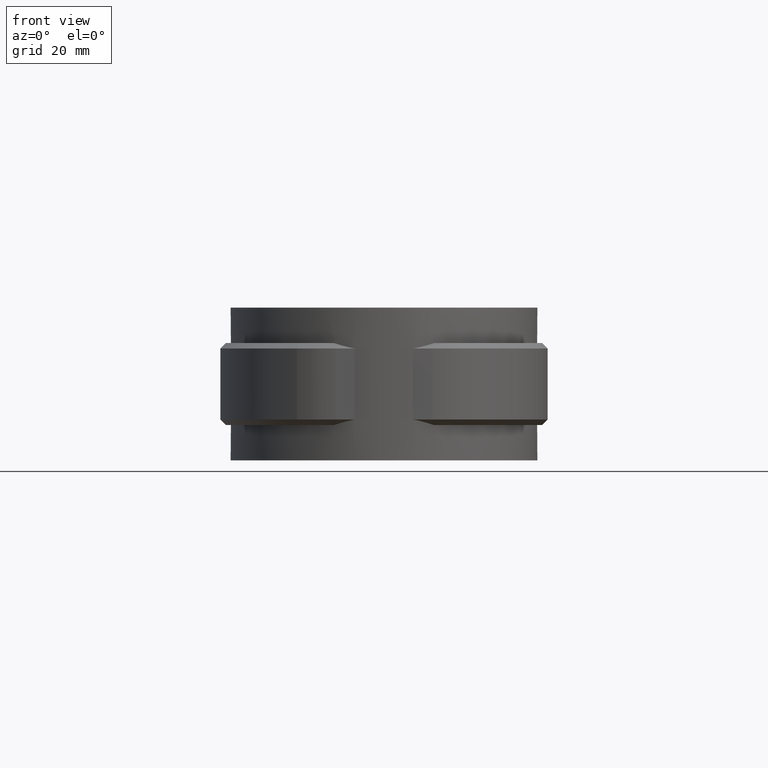
[diagram: clean part render]
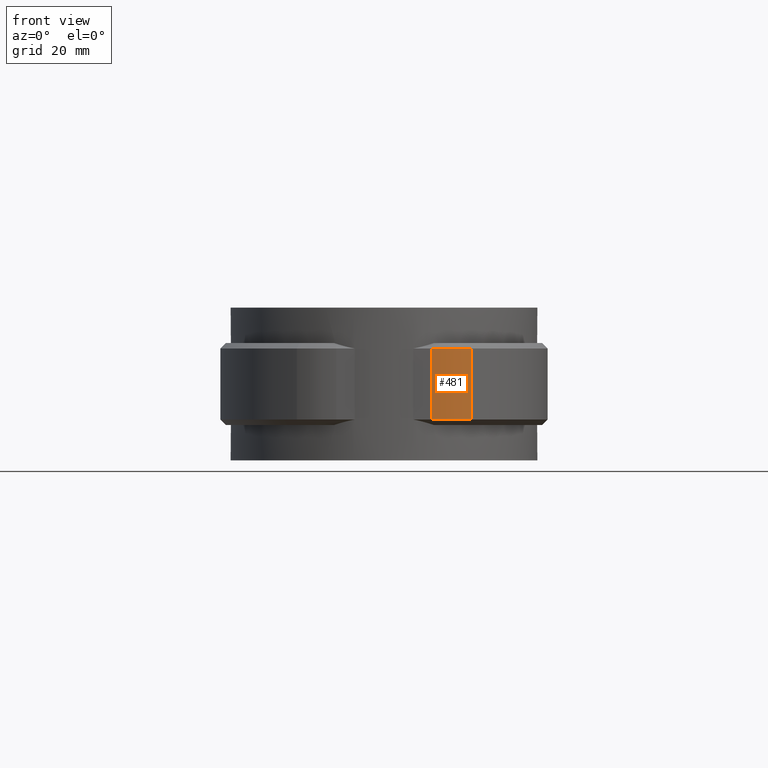
[diagram: same view with one face highlighted and labeled with its STEP entity id]
A machine part, front view. The second image highlights one B-rep face of the part: STEP entity #481.
In plain terms, the highlighted cylindrical surface (partial cylindrical patch) has radius 13.6 mm, axis along (0, 0, 1).
Its self-contained STEP definition (entity closure, byte-faithful):
#481 = ADVANCED_FACE( '', ( #955 ), #956, .T. );
#955 = FACE_OUTER_BOUND( '', #2269, .T. );
#956 = CYLINDRICAL_SURFACE( '', #2270, 13.6000000000000 );
#2269 = EDGE_LOOP( '', ( #5194, #5195, #5196, #5197 ) );
#2270 = AXIS2_PLACEMENT_3D( '', #5198, #5199, #5200 );
#5194 = ORIENTED_EDGE( '', *, *, #7509, .T. );
#5195 = ORIENTED_EDGE( '', *, *, #7533, .T. );
#5196 = ORIENTED_EDGE( '', *, *, #7360, .F. );
#5197 = ORIENTED_EDGE( '', *, *, #7531, .T. );
#5198 = CARTESIAN_POINT( '', ( 8.75469159936549, -13.9800000000000, -20.0000000000000 ) );
#5199 = DIRECTION( '', ( 0.000000000000000, 0.000000000000000, 1.00000000000000 ) );
#5200 = DIRECTION( '', ( 0.190592010331802, 0.981669336180815, 0.000000000000000 ) );
#7360 = EDGE_CURVE( '', #8490, #8491, #8492, .T. );
#7509 = EDGE_CURVE( '', #8743, #8741, #8744, .T. );
#7531 = EDGE_CURVE( '', #8490, #8743, #8770, .T. );
#7533 = EDGE_CURVE( '', #8741, #8491, #8772, .T. );
#8490 = VERTEX_POINT( '', #11356 );
#8491 = VERTEX_POINT( '', #11357 );
#8492 = LINE( '', #11358, #11359 );
#8741 = VERTEX_POINT( '', #12073 );
#8743 = VERTEX_POINT( '', #12075 );
#8744 = LINE( '', #12076, #12077 );
#8770 = CIRCLE( '', #12177, 13.6000000000000 );
#8772 = CIRCLE( '', #12182, 13.6000000000000 );
#11356 = CARTESIAN_POINT( '', ( 8.75469159936548, -27.5800000000000, -19.0000000000000 ) );
#11357 = CARTESIAN_POINT( '', ( 8.75469159936548, -27.5800000000000, -6.00000000000000 ) );
#11358 = CARTESIAN_POINT( '', ( 8.75469159936548, -27.5800000000000, -20.0000000000000 ) );
#11359 = VECTOR( '', #13872, 1000.00000000000 );
#12073 = CARTESIAN_POINT( '', ( 15.9728671526465, -25.5064019399818, -6.00000000000000 ) );
#12075 = CARTESIAN_POINT( '', ( 15.9728671526465, -25.5064019399818, -19.0000000000000 ) );
#12076 = CARTESIAN_POINT( '', ( 15.9728671526464, -25.5064019399818, -20.0000000000000 ) );
#12077 = VECTOR( '', #14047, 1000.00000000000 );
#12177 = AXIS2_PLACEMENT_3D( '', #14070, #14071, #14072 );
#12182 = AXIS2_PLACEMENT_3D( '', #14073, #14074, #14075 );
#13872 = DIRECTION( '', ( 0.000000000000000, 0.000000000000000, 1.00000000000000 ) );
#14047 = DIRECTION( '', ( 0.000000000000000, 0.000000000000000, 1.00000000000000 ) );
#14070 = CARTESIAN_POINT( '', ( 8.75469159936549, -13.9800000000000, -19.0000000000000 ) );
#14071 = DIRECTION( '', ( 0.000000000000000, 0.000000000000000, 1.00000000000000 ) );
#14072 = DIRECTION( '', ( 1.00000000000000, 0.000000000000000, 0.000000000000000 ) );
#14073 = CARTESIAN_POINT( '', ( 8.75469159936549, -13.9800000000000, -6.00000000000000 ) );
#14074 = DIRECTION( '', ( 0.000000000000000, 0.000000000000000, -1.00000000000000 ) );
#14075 = DIRECTION( '', ( -1.00000000000000, 0.000000000000000, 0.000000000000000 ) );